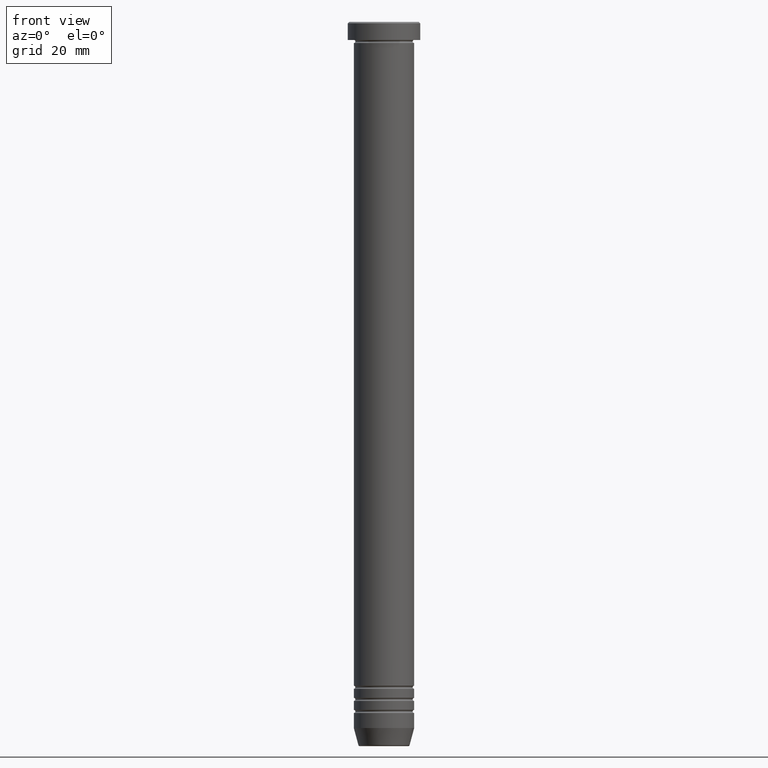
[diagram: clean part render]
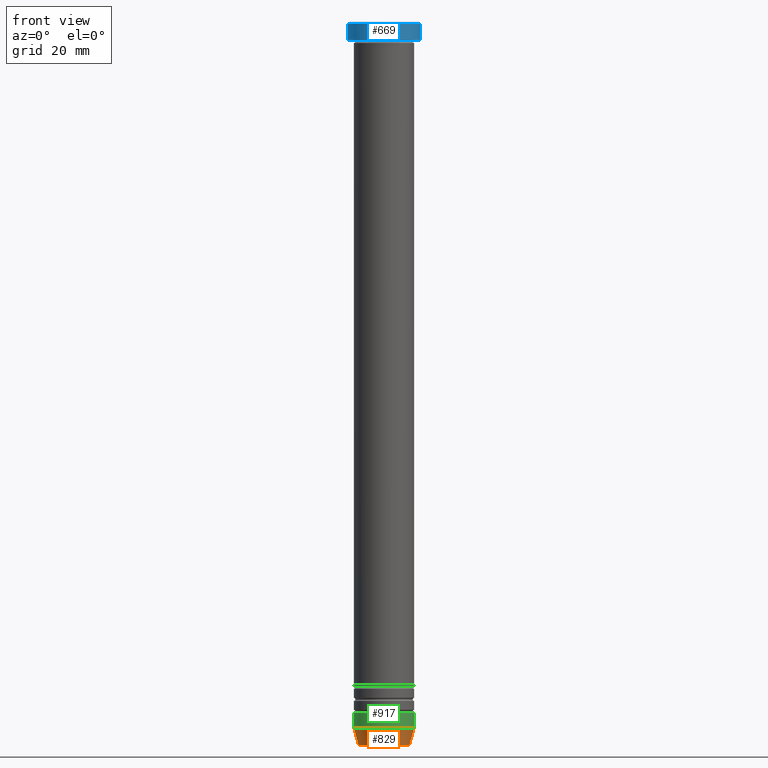
[diagram: same view with three faces highlighted in distinct colors, each labeled with its STEP entity id]
A machine part, front view with three faces highlighted in distinct colors.
Their STEP definitions:

[orange] entity #829 — the highlighted conical surface has half-angle 15 deg.
#3 = DIRECTION ( 'NONE',  ( 1.000000000000000000, 0.000000000000000000, 0.000000000000000000 ) ) ;
#25 = CONICAL_SURFACE ( 'NONE', #288, 8.392304845413249836, 0.2617993877991502960 ) ;
#29 = CARTESIAN_POINT ( 'NONE',  ( -10.00000000000000000, 1.224646799147353256E-15, -234.0000000000000000 ) ) ;
#54 = ORIENTED_EDGE ( 'NONE', *, *, #229, .F. ) ;
#120 = ORIENTED_EDGE ( 'NONE', *, *, #183, .T. ) ;
#183 = EDGE_CURVE ( 'NONE', #823, #459, #466, .T. ) ;
#186 = AXIS2_PLACEMENT_3D ( 'NONE', #297, #620, #216 ) ;
#216 = DIRECTION ( 'NONE',  ( -1.000000000000000000, 0.000000000000000000, 0.000000000000000000 ) ) ;
#229 = EDGE_CURVE ( 'NONE', #451, #988, #795, .T. ) ;
#239 = DIRECTION ( 'NONE',  ( 0.2588190451025215166, 0.000000000000000000, 0.9659258262890679791 ) ) ;
#288 = AXIS2_PLACEMENT_3D ( 'NONE', #663, #1055, #3 ) ;
#297 = CARTESIAN_POINT ( 'NONE',  ( 0.000000000000000000, 0.000000000000000000, -239.6294095225513274 ) ) ;
#338 = EDGE_CURVE ( 'NONE', #988, #459, #927, .T. ) ;
#378 = CARTESIAN_POINT ( 'NONE',  ( 8.392304845413249836, 0.000000000000000000, -240.0000000000000568 ) ) ;
#397 = ORIENTED_EDGE ( 'NONE', *, *, #338, .F. ) ;
#413 = EDGE_LOOP ( 'NONE', ( #54, #979, #120, #397 ) ) ;
#451 = VERTEX_POINT ( 'NONE', #758 ) ;
#459 = VERTEX_POINT ( 'NONE', #672 ) ;
#466 = LINE ( 'NONE', #378, #875 ) ;
#490 = FACE_OUTER_BOUND ( 'NONE', #413, .T. ) ;
#572 = CIRCLE ( 'NONE', #186, 8.491604264568294980 ) ;
#575 = DIRECTION ( 'NONE',  ( 1.000000000000000000, 0.000000000000000000, 0.000000000000000000 ) ) ;
#620 = DIRECTION ( 'NONE',  ( -0.000000000000000000, -0.000000000000000000, 1.000000000000000000 ) ) ;
#653 = CARTESIAN_POINT ( 'NONE',  ( 8.491604264568294980, 0.000000000000000000, -239.6294095225513274 ) ) ;
#663 = CARTESIAN_POINT ( 'NONE',  ( 0.000000000000000000, 0.000000000000000000, -240.0000000000000568 ) ) ;
#672 = CARTESIAN_POINT ( 'NONE',  ( 10.00000000000000000, 0.000000000000000000, -234.0000000000000000 ) ) ;
#715 = EDGE_CURVE ( 'NONE', #451, #823, #572, .T. ) ;
#746 = DIRECTION ( 'NONE',  ( -0.000000000000000000, -0.000000000000000000, 1.000000000000000000 ) ) ;
#754 = CARTESIAN_POINT ( 'NONE',  ( 0.000000000000000000, 0.000000000000000000, -234.0000000000000000 ) ) ;
#758 = CARTESIAN_POINT ( 'NONE',  ( -8.491604264568294980, 1.132284198685155006E-15, -239.6294095225513274 ) ) ;
#785 = CARTESIAN_POINT ( 'NONE',  ( -8.392304845413249836, 1.027760926640415931E-15, -240.0000000000000568 ) ) ;
#795 = LINE ( 'NONE', #785, #1011 ) ;
#823 = VERTEX_POINT ( 'NONE', #653 ) ;
#829 = ADVANCED_FACE ( 'NONE', ( #490 ), #25, .T. ) ;
#875 = VECTOR ( 'NONE', #239, 1000.000000000000114 ) ;
#927 = CIRCLE ( 'NONE', #1047, 10.00000000000000000 ) ;
#955 = DIRECTION ( 'NONE',  ( -0.2588190451025215166, 3.169619151431774802E-17, 0.9659258262890679791 ) ) ;
#979 = ORIENTED_EDGE ( 'NONE', *, *, #715, .T. ) ;
#988 = VERTEX_POINT ( 'NONE', #29 ) ;
#1011 = VECTOR ( 'NONE', #955, 1000.000000000000114 ) ;
#1047 = AXIS2_PLACEMENT_3D ( 'NONE', #754, #746, #575 ) ;
#1055 = DIRECTION ( 'NONE',  ( -0.000000000000000000, -0.000000000000000000, 1.000000000000000000 ) ) ;

[blue] entity #669 — the highlighted cylindrical surface (edge-blend (fillet) strip) has radius 12 mm, axis along (-0, -0, 1).
#55 = FACE_OUTER_BOUND ( 'NONE', #127, .T. ) ;
#101 = CARTESIAN_POINT ( 'NONE',  ( 0.000000000000000000, 0.000000000000000000, -0.4999999999999987232 ) ) ;
#127 = EDGE_LOOP ( 'NONE', ( #298, #736, #769, #1061 ) ) ;
#128 = VECTOR ( 'NONE', #179, 1000.000000000000000 ) ;
#132 = DIRECTION ( 'NONE',  ( 1.000000000000000000, 0.000000000000000000, 0.000000000000000000 ) ) ;
#137 = DIRECTION ( 'NONE',  ( -0.000000000000000000, -0.000000000000000000, 1.000000000000000000 ) ) ;
#141 = CYLINDRICAL_SURFACE ( 'NONE', #571, 12.00000000000000000 ) ;
#179 = DIRECTION ( 'NONE',  ( -0.000000000000000000, -0.000000000000000000, 1.000000000000000000 ) ) ;
#195 = DIRECTION ( 'NONE',  ( 0.000000000000000000, 0.000000000000000000, -1.000000000000000000 ) ) ;
#298 = ORIENTED_EDGE ( 'NONE', *, *, #416, .F. ) ;
#337 = AXIS2_PLACEMENT_3D ( 'NONE', #350, #594, #772 ) ;
#350 = CARTESIAN_POINT ( 'NONE',  ( 0.000000000000000000, 0.000000000000000000, -6.000000000000000000 ) ) ;
#363 = CARTESIAN_POINT ( 'NONE',  ( 12.00000000000000000, 0.000000000000000000, 0.000000000000000000 ) ) ;
#370 = AXIS2_PLACEMENT_3D ( 'NONE', #101, #195, #1014 ) ;
#407 = LINE ( 'NONE', #912, #128 ) ;
#416 = EDGE_CURVE ( 'NONE', #1033, #1049, #407, .T. ) ;
#489 = EDGE_CURVE ( 'NONE', #1033, #974, #936, .T. ) ;
#492 = VERTEX_POINT ( 'NONE', #768 ) ;
#494 = EDGE_CURVE ( 'NONE', #974, #492, #515, .T. ) ;
#499 = EDGE_CURVE ( 'NONE', #492, #1049, #870, .T. ) ;
#515 = LINE ( 'NONE', #363, #695 ) ;
#571 = AXIS2_PLACEMENT_3D ( 'NONE', #1026, #137, #132 ) ;
#594 = DIRECTION ( 'NONE',  ( -0.000000000000000000, -0.000000000000000000, 1.000000000000000000 ) ) ;
#669 = ADVANCED_FACE ( 'NONE', ( #55 ), #141, .T. ) ;
#688 = CARTESIAN_POINT ( 'NONE',  ( -12.00000000000000000, 1.469576158976823947E-15, -6.000000000000000000 ) ) ;
#695 = VECTOR ( 'NONE', #696, 1000.000000000000000 ) ;
#696 = DIRECTION ( 'NONE',  ( -0.000000000000000000, -0.000000000000000000, 1.000000000000000000 ) ) ;
#736 = ORIENTED_EDGE ( 'NONE', *, *, #489, .T. ) ;
#761 = CARTESIAN_POINT ( 'NONE',  ( 12.00000000000000000, 0.000000000000000000, -6.000000000000000000 ) ) ;
#768 = CARTESIAN_POINT ( 'NONE',  ( 12.00000000000000000, 0.000000000000000000, -0.4999999999999987232 ) ) ;
#769 = ORIENTED_EDGE ( 'NONE', *, *, #494, .T. ) ;
#772 = DIRECTION ( 'NONE',  ( 1.000000000000000000, 0.000000000000000000, 0.000000000000000000 ) ) ;
#870 = CIRCLE ( 'NONE', #370, 12.00000000000000000 ) ;
#912 = CARTESIAN_POINT ( 'NONE',  ( -12.00000000000000000, 1.469576158976823947E-15, 0.000000000000000000 ) ) ;
#936 = CIRCLE ( 'NONE', #337, 12.00000000000000000 ) ;
#952 = CARTESIAN_POINT ( 'NONE',  ( -12.00000000000000000, 1.469576158976823947E-15, -0.4999999999999987232 ) ) ;
#974 = VERTEX_POINT ( 'NONE', #761 ) ;
#1014 = DIRECTION ( 'NONE',  ( 1.000000000000000000, 0.000000000000000000, 0.000000000000000000 ) ) ;
#1026 = CARTESIAN_POINT ( 'NONE',  ( 0.000000000000000000, 0.000000000000000000, 0.000000000000000000 ) ) ;
#1033 = VERTEX_POINT ( 'NONE', #688 ) ;
#1049 = VERTEX_POINT ( 'NONE', #952 ) ;
#1061 = ORIENTED_EDGE ( 'NONE', *, *, #499, .T. ) ;

[green] entity #917 — the highlighted cylindrical surface (edge-blend (fillet) strip) has radius 10 mm, axis along (-0, -0, 1).
#17 = AXIS2_PLACEMENT_3D ( 'NONE', #80, #323, #1000 ) ;
#22 = LINE ( 'NONE', #207, #146 ) ;
#29 = CARTESIAN_POINT ( 'NONE',  ( -10.00000000000000000, 1.224646799147353256E-15, -234.0000000000000000 ) ) ;
#38 = AXIS2_PLACEMENT_3D ( 'NONE', #608, #766, #94 ) ;
#80 = CARTESIAN_POINT ( 'NONE',  ( 0.000000000000000000, 0.000000000000000000, -229.0000000000000000 ) ) ;
#94 = DIRECTION ( 'NONE',  ( 1.000000000000000000, 0.000000000000000000, 0.000000000000000000 ) ) ;
#114 = ORIENTED_EDGE ( 'NONE', *, *, #561, .F. ) ;
#124 = CARTESIAN_POINT ( 'NONE',  ( 10.00000000000000000, 0.000000000000000000, 0.000000000000000000 ) ) ;
#146 = VECTOR ( 'NONE', #527, 1000.000000000000000 ) ;
#193 = CIRCLE ( 'NONE', #17, 10.00000000000000000 ) ;
#194 = LINE ( 'NONE', #124, #676 ) ;
#207 = CARTESIAN_POINT ( 'NONE',  ( -10.00000000000000000, 1.224646799147353256E-15, 0.000000000000000000 ) ) ;
#293 = EDGE_CURVE ( 'NONE', #453, #649, #193, .T. ) ;
#301 = ORIENTED_EDGE ( 'NONE', *, *, #338, .T. ) ;
#306 = DIRECTION ( 'NONE',  ( -0.000000000000000000, -0.000000000000000000, 1.000000000000000000 ) ) ;
#323 = DIRECTION ( 'NONE',  ( -0.000000000000000000, -0.000000000000000000, 1.000000000000000000 ) ) ;
#338 = EDGE_CURVE ( 'NONE', #988, #459, #927, .T. ) ;
#348 = FACE_OUTER_BOUND ( 'NONE', #842, .T. ) ;
#385 = CARTESIAN_POINT ( 'NONE',  ( 10.00000000000000000, 0.000000000000000000, -229.0000000000000000 ) ) ;
#453 = VERTEX_POINT ( 'NONE', #860 ) ;
#459 = VERTEX_POINT ( 'NONE', #672 ) ;
#527 = DIRECTION ( 'NONE',  ( -0.000000000000000000, -0.000000000000000000, 1.000000000000000000 ) ) ;
#561 = EDGE_CURVE ( 'NONE', #988, #453, #22, .T. ) ;
#575 = DIRECTION ( 'NONE',  ( 1.000000000000000000, 0.000000000000000000, 0.000000000000000000 ) ) ;
#608 = CARTESIAN_POINT ( 'NONE',  ( 0.000000000000000000, 0.000000000000000000, 0.000000000000000000 ) ) ;
#649 = VERTEX_POINT ( 'NONE', #385 ) ;
#672 = CARTESIAN_POINT ( 'NONE',  ( 10.00000000000000000, 0.000000000000000000, -234.0000000000000000 ) ) ;
#676 = VECTOR ( 'NONE', #306, 1000.000000000000000 ) ;
#746 = DIRECTION ( 'NONE',  ( -0.000000000000000000, -0.000000000000000000, 1.000000000000000000 ) ) ;
#754 = CARTESIAN_POINT ( 'NONE',  ( 0.000000000000000000, 0.000000000000000000, -234.0000000000000000 ) ) ;
#766 = DIRECTION ( 'NONE',  ( -0.000000000000000000, -0.000000000000000000, 1.000000000000000000 ) ) ;
#838 = ORIENTED_EDGE ( 'NONE', *, *, #293, .F. ) ;
#842 = EDGE_LOOP ( 'NONE', ( #114, #301, #972, #838 ) ) ;
#860 = CARTESIAN_POINT ( 'NONE',  ( -10.00000000000000000, 1.224646799147353256E-15, -229.0000000000000000 ) ) ;
#917 = ADVANCED_FACE ( 'NONE', ( #348 ), #1012, .T. ) ;
#927 = CIRCLE ( 'NONE', #1047, 10.00000000000000000 ) ;
#972 = ORIENTED_EDGE ( 'NONE', *, *, #1041, .T. ) ;
#988 = VERTEX_POINT ( 'NONE', #29 ) ;
#1000 = DIRECTION ( 'NONE',  ( 1.000000000000000000, 0.000000000000000000, 0.000000000000000000 ) ) ;
#1012 = CYLINDRICAL_SURFACE ( 'NONE', #38, 10.00000000000000000 ) ;
#1041 = EDGE_CURVE ( 'NONE', #459, #649, #194, .T. ) ;
#1047 = AXIS2_PLACEMENT_3D ( 'NONE', #754, #746, #575 ) ;